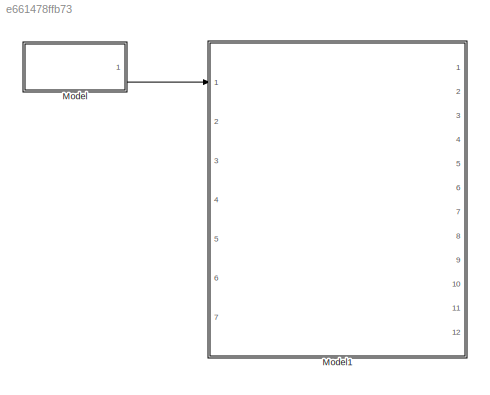
MODEL slx_e661478ffb73
KIND model
CONFIG AbsTol = auto
CONFIG EnableMultiTasking = off
CONFIG FixedStep = auto
CONFIG MaxStep = auto
CONFIG MinStep = auto
CONFIG RelTol = 1e-3
CONFIG SampleTimeConstraint = Unconstrained
CONFIG SolverName = VariableStepAuto
CONFIG StartTime = 0.0
CONFIG StopTime = 10.0
BLOCK [ModelReference] Model
  ModelNameDialog = VXRv1.slx
  ModelReferenceVersion = 1.58
  Ports = [0, 1]
BLOCK [ModelReference] Model1
  ModelNameDialog = motorStyrning.slx
  ModelReferenceVersion = 1.72
  Ports = [7, 12]
LINE Model:1 -> Model1:1
